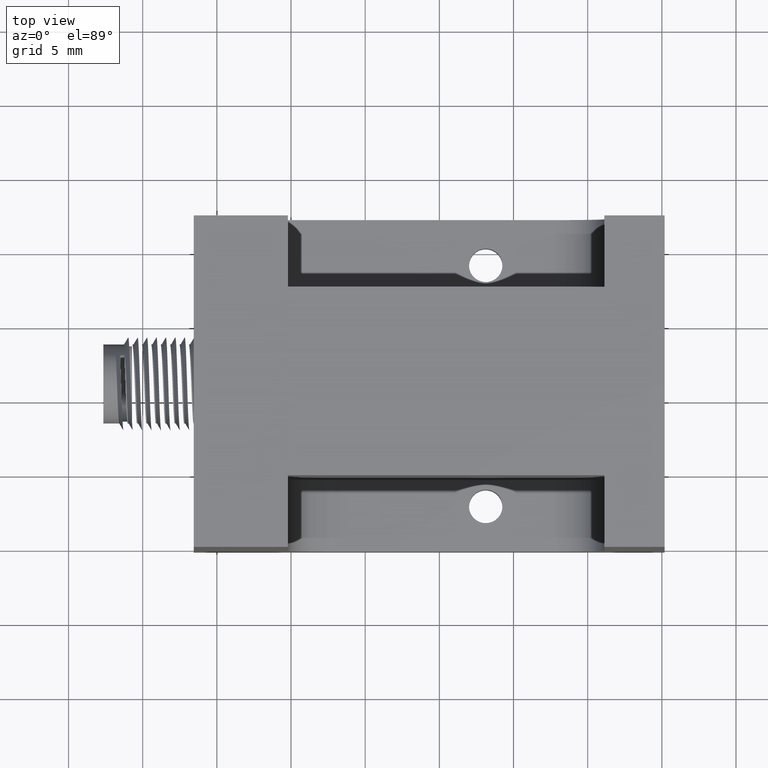
[diagram: clean part render]
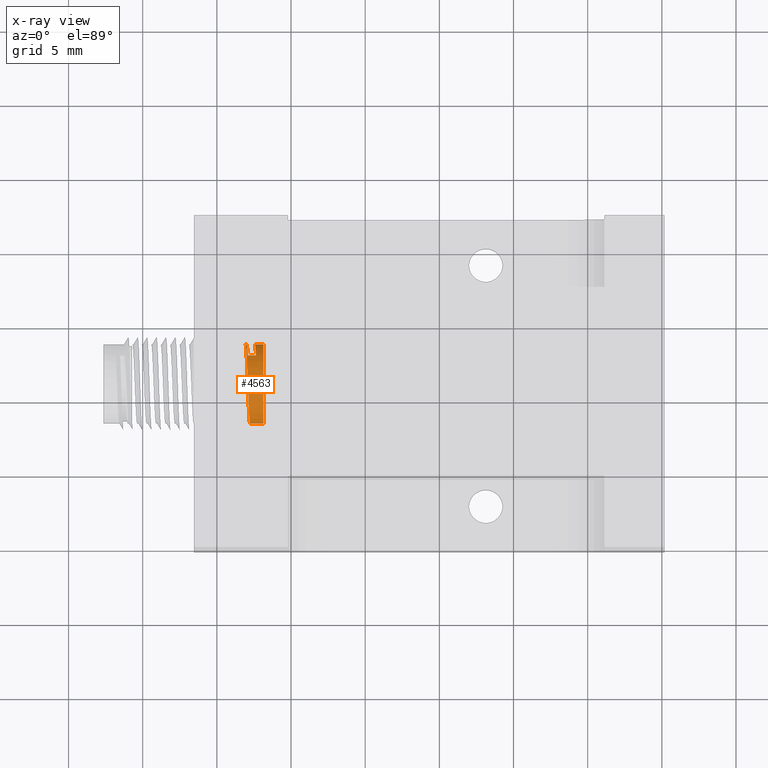
[diagram: x-ray — body ghosted, one internal face saturated and labeled with its STEP entity id]
A machine part, top view, then the same camera in x-ray: the body is ghosted and one INTERNAL B-rep face — a face not visible from any outside direction — is saturated and labeled: STEP entity #4563.
In plain terms, the highlighted cylindrical surface (partial cylindrical patch) has radius 2.667 mm, axis along (-1, -0, -0).
Its self-contained STEP definition (entity closure, byte-faithful):
#41 = CARTESIAN_POINT ( 'NONE',  ( -0.8606602320673342200, -0.2464438674591303600, 0.1482252380678192300 ) ) ;
#45 = VERTEX_POINT ( 'NONE', #2037 ) ;
#176 = CIRCLE ( 'NONE', #7042, 0.1049999999999999700 ) ;
#339 = CARTESIAN_POINT ( 'NONE',  ( -0.9012728956424102000, -0.3786195485347982900, 0.2496475352123505600 ) ) ;
#369 = EDGE_CURVE ( 'NONE', #1076, #45, #2523, .T. ) ;
#500 = CARTESIAN_POINT ( 'NONE',  ( -0.9024357652567085400, -0.2771974221596263400, 0.2224712168167578000 ) ) ;
#663 = VERTEX_POINT ( 'NONE', #41 ) ;
#704 = ORIENTED_EDGE ( 'NONE', *, *, #1297, .F. ) ;
#783 = DIRECTION ( 'NONE',  ( 0.0000000000000000000, 1.000000000000000000, -6.504399984914914400E-016 ) ) ;
#867 = EDGE_CURVE ( 'NONE', #4831, #2595, #3550, .T. ) ;
#988 = DIRECTION ( 'NONE',  ( -1.000000000000000000, -2.537025070179132000E-016, -3.925713232384854800E-016 ) ) ;
#1076 = VERTEX_POINT ( 'NONE', #2770 ) ;
#1232 = CYLINDRICAL_SURFACE ( 'NONE', #3568, 0.1049999999999999700 ) ;
#1297 = EDGE_CURVE ( 'NONE', #663, #4831, #176, .T. ) ;
#1336 = CARTESIAN_POINT ( 'NONE',  ( -0.8606602320673342200, -0.4564438674591302900, 0.1482252380678194300 ) ) ;
#1454 = CARTESIAN_POINT ( 'NONE',  ( -0.8804395623090773800, -0.2771974221596265100, 0.2224712168167574900 ) ) ;
#1547 = DIRECTION ( 'NONE',  ( -1.000000000000000000, -2.537025070179132000E-016, -3.925713232384854800E-016 ) ) ;
#1606 =( BOUNDED_CURVE ( )  B_SPLINE_CURVE ( 2, ( #3095, #5476, #1454 ),
 .UNSPECIFIED., .F., .F. ) 
 B_SPLINE_CURVE_WITH_KNOTS ( ( 3, 3 ),
 ( 0.9911230485391087100, 1.000000000000000000 ),
 .UNSPECIFIED. ) 
 CURVE ( )  GEOMETRIC_REPRESENTATION_ITEM ( )  RATIONAL_B_SPLINE_CURVE ( ( 0.9491836400802157200, 0.9000999770417635900, 1.000000000000000000 ) ) 
 REPRESENTATION_ITEM ( '' )  );
#1647 =( BOUNDED_CURVE ( )  B_SPLINE_CURVE ( 2, ( #4087, #6390, #5843 ),
 .UNSPECIFIED., .F., .F. ) 
 B_SPLINE_CURVE_WITH_KNOTS ( ( 3, 3 ),
 ( 0.0000000000000000000, 0.008876951460891372900 ),
 .UNSPECIFIED. ) 
 CURVE ( )  GEOMETRIC_REPRESENTATION_ITEM ( )  RATIONAL_B_SPLINE_CURVE ( ( 1.000000000000000000, 0.9000999770417630300, 0.9491836400802162700 ) ) 
 REPRESENTATION_ITEM ( '' )  );
#1755 = EDGE_LOOP ( 'NONE', ( #7269, #704, #4012, #5543, #7438, #3757, #3424, #2850 ) ) ;
#1797 = VERTEX_POINT ( 'NONE', #500 ) ;
#1880 = CARTESIAN_POINT ( 'NONE',  ( -0.8606602320673340000, -0.2771974221596265100, 0.2224712168167575800 ) ) ;
#2037 = CARTESIAN_POINT ( 'NONE',  ( -0.9086012956850962900, -0.2464438674591302200, 0.1482252380678193100 ) ) ;
#2077 = CARTESIAN_POINT ( 'NONE',  ( -0.8966311631780263800, -0.4564438674591305700, 0.1620489181240504200 ) ) ;
#2176 = CARTESIAN_POINT ( 'NONE',  ( -0.9086012956850962900, -0.2464438674591302200, 0.1482252380678193100 ) ) ;
#2262 = CARTESIAN_POINT ( 'NONE',  ( -0.8961012956850958900, -0.4564438674591305100, 0.1482252380678193700 ) ) ;
#2523 = LINE ( 'NONE', #6224, #5370 ) ;
#2595 = VERTEX_POINT ( 'NONE', #2262 ) ;
#2770 = CARTESIAN_POINT ( 'NONE',  ( -0.9055974986327274300, -0.2464438674591306300, 0.1482252380678193100 ) ) ;
#2850 = ORIENTED_EDGE ( 'NONE', *, *, #3598, .T. ) ;
#3072 = DIRECTION ( 'NONE',  ( -1.000000000000000000, -2.537025070179132000E-016, -3.925713232384854800E-016 ) ) ;
#3095 = CARTESIAN_POINT ( 'NONE',  ( -0.8836012956850960400, -0.2464438674591303600, 0.1482252380678192900 ) ) ;
#3267 = CARTESIAN_POINT ( 'NONE',  ( -0.8606602320673342200, -0.2464438674591303600, 0.1482252380678193100 ) ) ;
#3348 = EDGE_CURVE ( 'NONE', #5289, #3520, #1606, .T. ) ;
#3424 = ORIENTED_EDGE ( 'NONE', *, *, #369, .T. ) ;
#3520 = VERTEX_POINT ( 'NONE', #7492 ) ;
#3550 = LINE ( 'NONE', #6112, #3907 ) ;
#3567 = LINE ( 'NONE', #3267, #7328 ) ;
#3568 = AXIS2_PLACEMENT_3D ( 'NONE', #6582, #6611, #783 ) ;
#3598 = EDGE_CURVE ( 'NONE', #45, #2595, #5099, .T. ) ;
#3757 = ORIENTED_EDGE ( 'NONE', *, *, #7414, .T. ) ;
#3863 = CARTESIAN_POINT ( 'NONE',  ( -0.8961012956850958900, -0.4564438674591305100, 0.1482252380678193700 ) ) ;
#3907 = VECTOR ( 'NONE', #988, 39.37007874015748100 ) ;
#3912 = CARTESIAN_POINT ( 'NONE',  ( -0.9069342201161445500, -0.2464438674591303600, 0.1917174688655484100 ) ) ;
#4012 = ORIENTED_EDGE ( 'NONE', *, *, #6779, .T. ) ;
#4087 = CARTESIAN_POINT ( 'NONE',  ( -0.9024357652567085400, -0.2771974221596263400, 0.2224712168167578000 ) ) ;
#4291 = VECTOR ( 'NONE', #3072, 39.37007874015748100 ) ;
#4300 = CARTESIAN_POINT ( 'NONE',  ( -0.8836012956850959300, -0.2464438674591303600, 0.1482252380678192900 ) ) ;
#4409 = CARTESIAN_POINT ( 'NONE',  ( -0.8971062289757438800, -0.4528659938343025900, 0.1754015564634122900 ) ) ;
#4515 = FACE_OUTER_BOUND ( 'NONE', #1755, .T. ) ;
#4563 = ADVANCED_FACE ( 'NONE', ( #4515 ), #1232, .T. ) ;
#4831 = VERTEX_POINT ( 'NONE', #1336 ) ;
#4930 = LINE ( 'NONE', #1880, #4291 ) ;
#5016 = DIRECTION ( 'NONE',  ( -1.000000000000000000, -2.537025070179132000E-016, -3.925713232384854800E-016 ) ) ;
#5099 =( BOUNDED_CURVE ( )  B_SPLINE_CURVE ( 2, ( #2176, #3912, #7396, #5663, #339, #6187, #4409, #2077, #3863 ),
 .UNSPECIFIED., .F., .F. ) 
 B_SPLINE_CURVE_WITH_KNOTS ( ( 3, 2, 2, 2, 3 ),
 ( 0.9196944771105372000, 0.9285714285714286000, 0.9404761904761904700, 0.9523809523809523300, 0.9554087628248229000 ),
 .UNSPECIFIED. ) 
 CURVE ( )  GEOMETRIC_REPRESENTATION_ITEM ( )  RATIONAL_B_SPLINE_CURVE ( ( 0.9491836400802160500, 0.9000999770417633700, 1.000000000000000000, 0.8660254037844387100, 1.000000000000000000, 0.8660254037844387100, 1.000000000000000000, 0.9659254267426753400, 0.9491836400802160500 ) ) 
 REPRESENTATION_ITEM ( '' )  );
#5289 = VERTEX_POINT ( 'NONE', #4300 ) ;
#5370 = VECTOR ( 'NONE', #1547, 39.37007874015748100 ) ;
#5476 = CARTESIAN_POINT ( 'NONE',  ( -0.8819342201161447500, -0.2464438674591306600, 0.1917174688655483000 ) ) ;
#5502 = DIRECTION ( 'NONE',  ( 1.000000000000000000, 2.537025070179132000E-016, 3.925713232384854800E-016 ) ) ;
#5543 = ORIENTED_EDGE ( 'NONE', *, *, #3348, .T. ) ;
#5663 = CARTESIAN_POINT ( 'NONE',  ( -0.9033562289757443000, -0.3200633579765735400, 0.2653374219967992700 ) ) ;
#5843 = CARTESIAN_POINT ( 'NONE',  ( -0.9055974986327274300, -0.2464438674591306300, 0.1482252380678193100 ) ) ;
#5864 = EDGE_CURVE ( 'NONE', #3520, #1797, #4930, .T. ) ;
#6112 = CARTESIAN_POINT ( 'NONE',  ( -0.8606602320673342200, -0.4564438674591302900, 0.1482252380678194300 ) ) ;
#6130 = DIRECTION ( 'NONE',  ( 0.0000000000000000000, -1.000000000000000000, 6.504399984914914400E-016 ) ) ;
#6187 = CARTESIAN_POINT ( 'NONE',  ( -0.8991895623090774300, -0.4371757390930237600, 0.2339576484279023700 ) ) ;
#6224 = CARTESIAN_POINT ( 'NONE',  ( -0.8606602320673342200, -0.2464438674591303600, 0.1482252380678193100 ) ) ;
#6390 = CARTESIAN_POINT ( 'NONE',  ( -0.9039304230637759100, -0.2464438674591305200, 0.1917174688655485200 ) ) ;
#6582 = CARTESIAN_POINT ( 'NONE',  ( -0.8606602320673342200, -0.3514438674591303100, 0.1482252380678193700 ) ) ;
#6611 = DIRECTION ( 'NONE',  ( -1.000000000000000000, -2.537025070179132000E-016, -3.925713232384854800E-016 ) ) ;
#6779 = EDGE_CURVE ( 'NONE', #663, #5289, #3567, .T. ) ;
#7042 = AXIS2_PLACEMENT_3D ( 'NONE', #7263, #5502, #6130 ) ;
#7263 = CARTESIAN_POINT ( 'NONE',  ( -0.8606602320673342200, -0.3514438674591303100, 0.1482252380678193700 ) ) ;
#7269 = ORIENTED_EDGE ( 'NONE', *, *, #867, .F. ) ;
#7328 = VECTOR ( 'NONE', #5016, 39.37007874015748100 ) ;
#7396 = CARTESIAN_POINT ( 'NONE',  ( -0.9054395623090775200, -0.2771974221596260600, 0.2224712168167576100 ) ) ;
#7414 = EDGE_CURVE ( 'NONE', #1797, #1076, #1647, .T. ) ;
#7438 = ORIENTED_EDGE ( 'NONE', *, *, #5864, .T. ) ;
#7492 = CARTESIAN_POINT ( 'NONE',  ( -0.8804395623090773800, -0.2771974221596265100, 0.2224712168167574900 ) ) ;